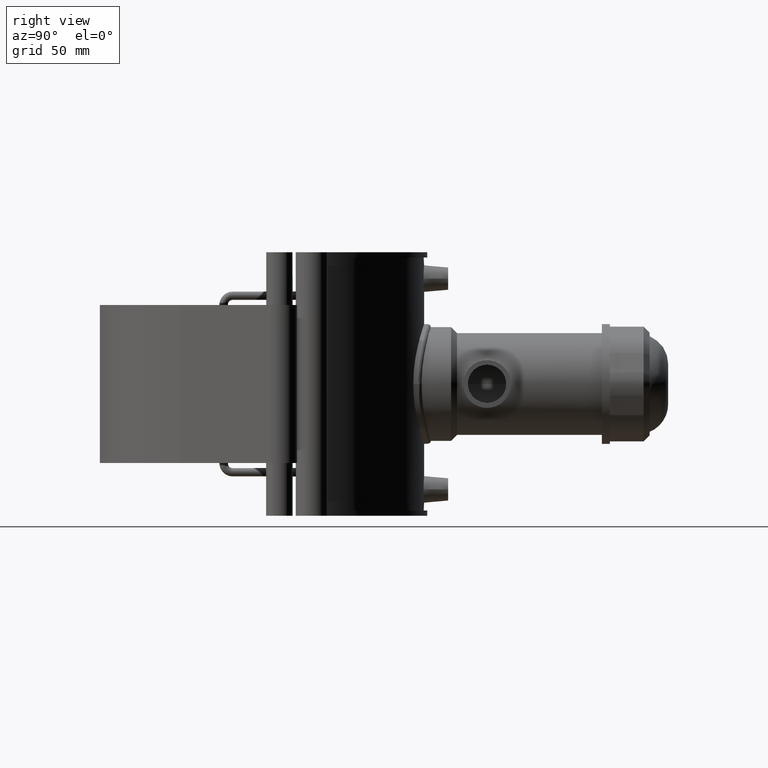
[diagram: clean part render]
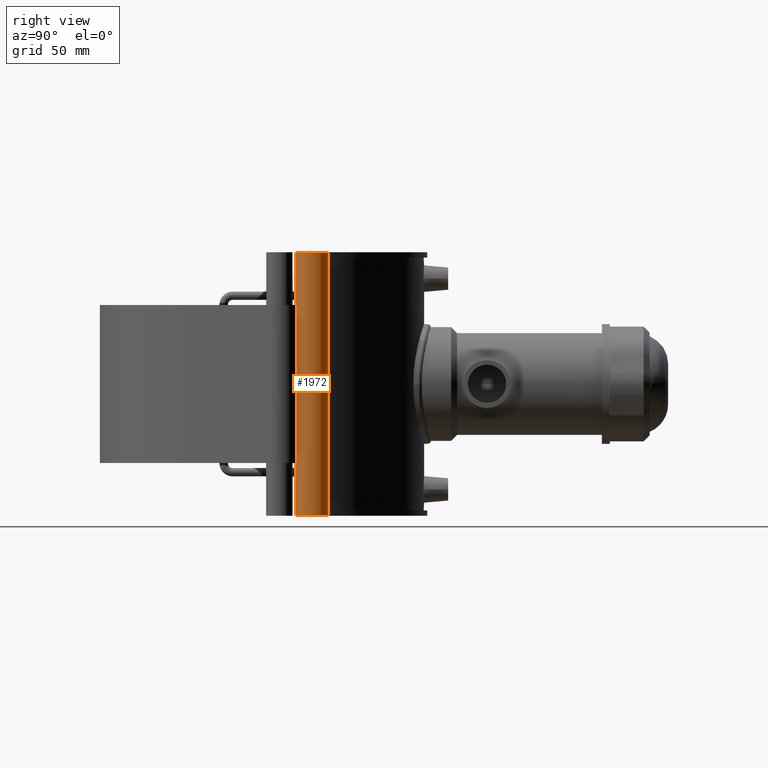
[diagram: same view with one face highlighted and labeled with its STEP entity id]
A machine part, right view. The second image highlights one B-rep face of the part: STEP entity #1972.
In plain terms, the highlighted cylindrical surface (edge-blend (fillet) strip) has radius 10.7692 mm, axis along (0, 0, 1).
Its self-contained STEP definition (entity closure, byte-faithful):
#188=LINE('',#3586,#349);
#195=LINE('',#3608,#356);
#196=LINE('',#3610,#357);
#197=LINE('',#3614,#358);
#198=LINE('',#3617,#359);
#349=VECTOR('',#2683,105.6);
#356=VECTOR('',#2716,176.);
#357=VECTOR('',#2717,3.52);
#358=VECTOR('',#2720,168.96);
#359=VECTOR('',#2723,3.52);
#384=FACE_BOUND('',#696,.T.);
#442=CYLINDRICAL_SURFACE('',#2170,10.7692307692308);
#551=FACE_OUTER_BOUND('',#695,.T.);
#695=EDGE_LOOP('',(#1731,#1732,#1733,#1734,#1735,#1736,#1737,#1738));
#696=EDGE_LOOP('',(#1739,#1740));
#794=CIRCLE('',#2146,10.7692307692308);
#797=CIRCLE('',#2150,10.7692307692308);
#801=CIRCLE('',#2171,10.7692307692308);
#802=CIRCLE('',#2172,10.7692307692308);
#889=VERTEX_POINT('',#3319);
#909=VERTEX_POINT('',#3361);
#971=VERTEX_POINT('',#3561);
#972=VERTEX_POINT('',#3563);
#973=VERTEX_POINT('',#3567);
#974=VERTEX_POINT('',#3569);
#978=VERTEX_POINT('',#3609);
#979=VERTEX_POINT('',#3611);
#980=VERTEX_POINT('',#3613);
#981=VERTEX_POINT('',#3615);
#1218=EDGE_CURVE('',#971,#972,#794,.T.);
#1221=EDGE_CURVE('',#973,#974,#797,.T.);
#1230=EDGE_CURVE('',#889,#909,#188,.T.);
#1239=EDGE_CURVE('',#974,#971,#195,.T.);
#1240=EDGE_CURVE('',#978,#973,#196,.T.);
#1241=EDGE_CURVE('',#979,#978,#801,.T.);
#1242=EDGE_CURVE('',#980,#979,#197,.T.);
#1243=EDGE_CURVE('',#981,#980,#802,.T.);
#1244=EDGE_CURVE('',#972,#981,#198,.T.);
#1731=ORIENTED_EDGE('',*,*,#1239,.F.);
#1732=ORIENTED_EDGE('',*,*,#1221,.F.);
#1733=ORIENTED_EDGE('',*,*,#1240,.F.);
#1734=ORIENTED_EDGE('',*,*,#1241,.F.);
#1735=ORIENTED_EDGE('',*,*,#1242,.F.);
#1736=ORIENTED_EDGE('',*,*,#1243,.F.);
#1737=ORIENTED_EDGE('',*,*,#1244,.F.);
#1738=ORIENTED_EDGE('',*,*,#1218,.F.);
#1739=ORIENTED_EDGE('',*,*,#1230,.T.);
#1740=ORIENTED_EDGE('',*,*,#1230,.F.);
#1972=ADVANCED_FACE('',(#551,#384),#442,.T.);
#2146=AXIS2_PLACEMENT_3D('',#3564,#2652,#2653);
#2150=AXIS2_PLACEMENT_3D('',#3570,#2660,#2661);
#2170=AXIS2_PLACEMENT_3D('',#3607,#2714,#2715);
#2171=AXIS2_PLACEMENT_3D('',#3612,#2718,#2719);
#2172=AXIS2_PLACEMENT_3D('',#3616,#2721,#2722);
#2652=DIRECTION('center_axis',(0.,0.,1.));
#2653=DIRECTION('ref_axis',(-1.,0.,0.));
#2660=DIRECTION('center_axis',(0.,0.,-1.));
#2661=DIRECTION('ref_axis',(-1.,0.,0.));
#2683=DIRECTION('',(0.,0.,1.));
#2714=DIRECTION('center_axis',(0.,0.,1.));
#2715=DIRECTION('ref_axis',(-1.,0.,0.));
#2716=DIRECTION('',(0.,0.,1.));
#2717=DIRECTION('',(0.,0.,-1.));
#2718=DIRECTION('center_axis',(0.,0.,-1.));
#2719=DIRECTION('ref_axis',(-1.,0.,0.));
#2720=DIRECTION('',(0.,0.,-1.));
#2721=DIRECTION('center_axis',(0.,0.,1.));
#2722=DIRECTION('ref_axis',(-1.,0.,0.));
#2723=DIRECTION('',(0.,0.,-1.));
#3319=CARTESIAN_POINT('',(110.177502823399,28.6627455084343,-52.8));
#3361=CARTESIAN_POINT('',(110.177502823399,28.6627455084343,52.8));
#3561=CARTESIAN_POINT('',(97.0051920842069,35.3070024879267,88.));
#3563=CARTESIAN_POINT('',(105.179071776369,49.5822675990262,88.));
#3564=CARTESIAN_POINT('Origin',(107.124958769594,38.9902963391263,88.));
#3567=CARTESIAN_POINT('',(105.179071776369,49.5822675990262,-88.));
#3569=CARTESIAN_POINT('',(97.0051920842069,35.3070024879267,-88.));
#3570=CARTESIAN_POINT('Origin',(107.124958769594,38.9902963391263,-88.));
#3586=CARTESIAN_POINT('',(110.177502823399,28.6627455084343,0.));
#3607=CARTESIAN_POINT('Origin',(107.124958769594,38.9902963391263,0.));
#3608=CARTESIAN_POINT('',(97.0051920842069,35.3070024879267,0.));
#3609=CARTESIAN_POINT('',(105.179071776369,49.5822675990263,-84.48));
#3610=CARTESIAN_POINT('',(105.179071776369,49.5822675990262,0.));
#3611=CARTESIAN_POINT('',(102.967784249054,48.9247933755505,-84.48));
#3612=CARTESIAN_POINT('Origin',(107.124958769594,38.9902963391263,-84.48));
#3613=CARTESIAN_POINT('',(102.967784249054,48.9247933755505,84.48));
#3614=CARTESIAN_POINT('',(102.967784249054,48.9247933755505,0.));
#3615=CARTESIAN_POINT('',(105.179071776369,49.5822675990263,84.48));
#3616=CARTESIAN_POINT('Origin',(107.124958769594,38.9902963391263,84.48));
#3617=CARTESIAN_POINT('',(105.179071776369,49.5822675990262,0.));